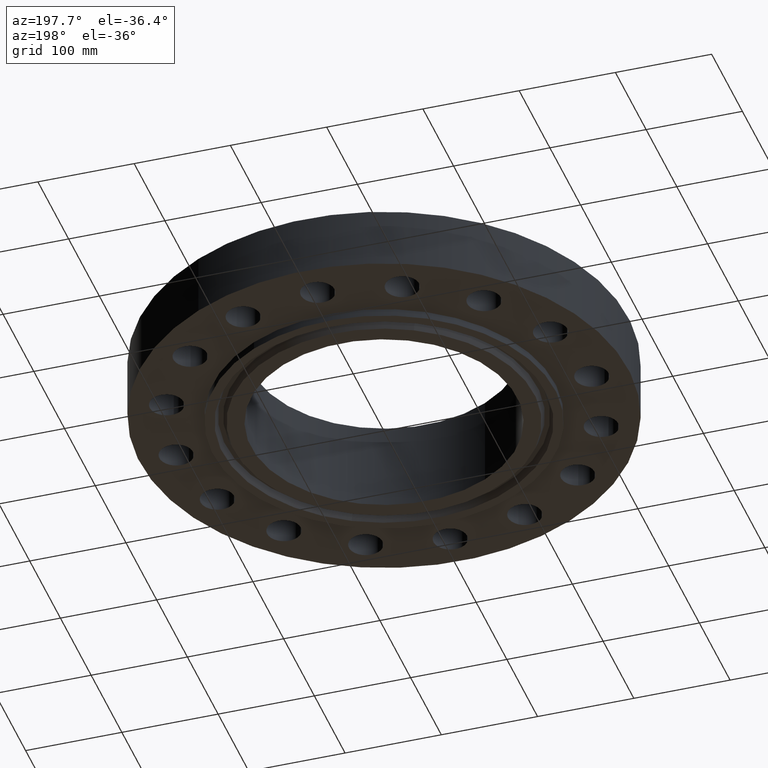
[diagram: clean part render]
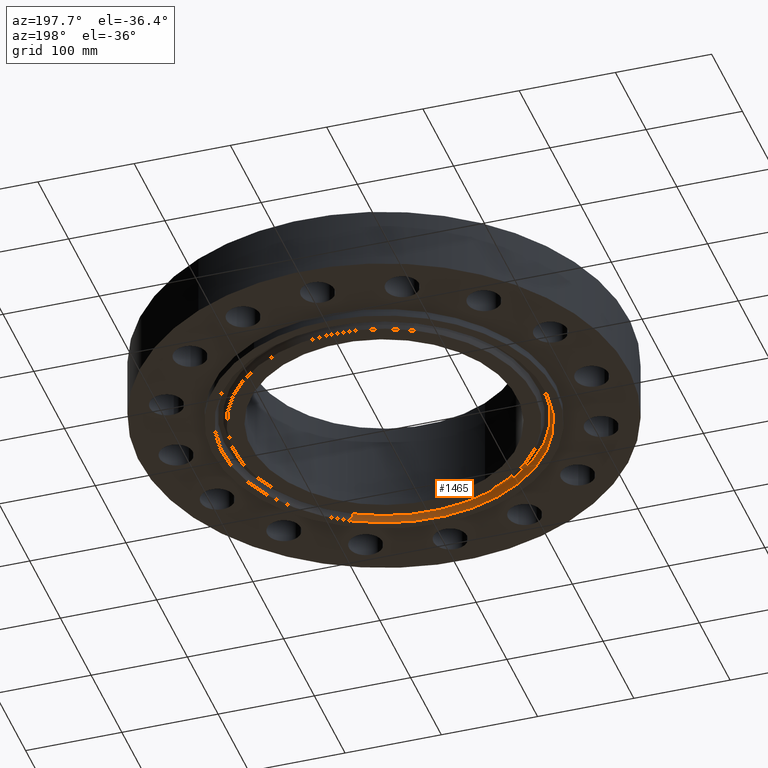
[diagram: same view with one face highlighted and labeled with its STEP entity id]
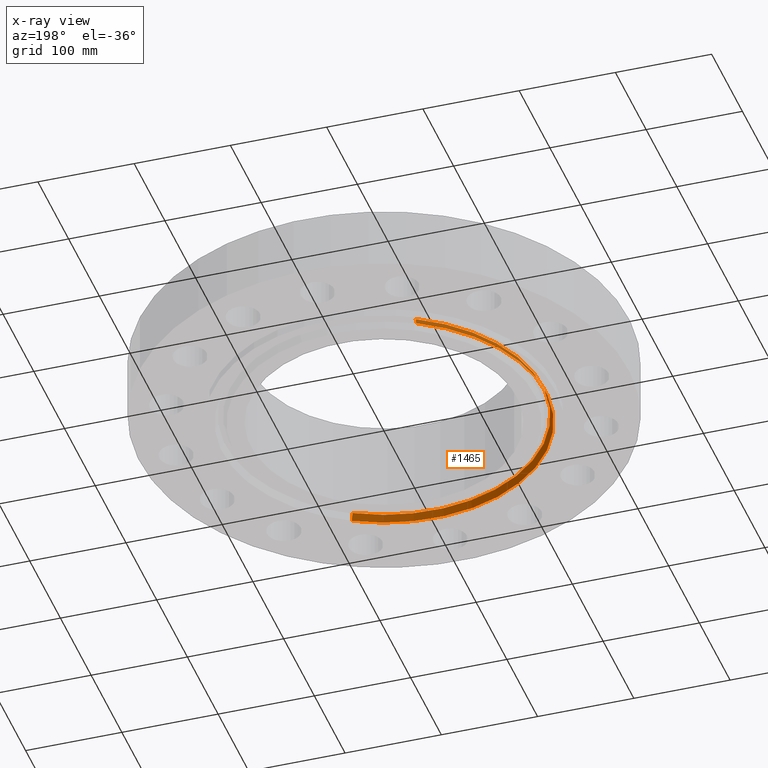
[diagram: x-ray of the same camera — body ghosted, the highlighted face saturated]
A machine part, auxiliary view. The second image highlights one B-rep face of the part: STEP entity #1465.
The next image is the same camera in x-ray: the body ghosted, the highlighted face saturated — about 0% of this face is hidden behind the body in this view.
In plain terms, the highlighted conical surface has half-angle 23 deg.
Its self-contained STEP definition (entity closure, byte-faithful):
#1364=AXIS2_PLACEMENT_3D('Circle Axis2P3D',#1362,#1363,$) ;
#1411=AXIS2_PLACEMENT_3D('Circle Axis2P3D',#1409,#1410,$) ;
#1447=AXIS2_PLACEMENT_3D('Cone Axis2P3D',#1444,#1445,#1446) ;
#1362=CARTESIAN_POINT('Axis2P3D Location',(-2.79741234551E-016,1.1189649382E-015,-0.312500000001)) ;
#1366=CARTESIAN_POINT('Vertex',(3.16870316922,-5.80027224502,-0.312500000001)) ;
#1368=CARTESIAN_POINT('Vertex',(-3.16870316922,5.80027224502,-0.312500000001)) ;
#1409=CARTESIAN_POINT('Axis2P3D Location',(0.,0.,-0.0190396522348)) ;
#1413=CARTESIAN_POINT('Vertex',(-3.10898279484,5.69095483297,-0.0190396522348)) ;
#1415=CARTESIAN_POINT('Vertex',(3.10898279484,-5.69095483297,-0.0190396522348)) ;
#1444=CARTESIAN_POINT('Axis2P3D Location',(0.,0.,-0.0190396522348)) ;
#1449=CARTESIAN_POINT('Line Origine',(-3.13884298203,5.74561353899,-0.165769826118)) ;
#1454=CARTESIAN_POINT('Line Origine',(3.13884298203,-5.74561353899,-0.165769826118)) ;
#1363=DIRECTION('Axis2P3D Direction',(0.,0.,-0.0393700787402)) ;
#1410=DIRECTION('Axis2P3D Direction',(0.,0.,0.0393700787402)) ;
#1445=DIRECTION('Axis2P3D Direction',(-0.,-0.,-0.0393700787402)) ;
#1446=DIRECTION('Axis2P3D XDirection',(-0.0188750212049,0.0345504945626,0.)) ;
#1450=DIRECTION('Vector Direction',(-0.00737505833565,0.0134999537303,-0.0362403485611)) ;
#1455=DIRECTION('Vector Direction',(0.00737505833565,-0.0134999537303,-0.0362403485611)) ;
#1451=VECTOR('Line Direction',#1450,0.0393700787402) ;
#1456=VECTOR('Line Direction',#1455,0.0393700787402) ;
#1460=ORIENTED_EDGE('',*,*,#1370,.T.) ;
#1461=ORIENTED_EDGE('',*,*,#1453,.T.) ;
#1462=ORIENTED_EDGE('',*,*,#1417,.T.) ;
#1463=ORIENTED_EDGE('',*,*,#1458,.F.) ;
#1465=ADVANCED_FACE('PartBody',(#1464),#1448,.F.) ;
#1365=CIRCLE('generated circle',#1364,6.60937500003) ;
#1412=CIRCLE('generated circle',#1411,6.48480847284) ;
#1448=CONICAL_SURFACE('Cone',#1447,6.48480847284,0.401425727959) ;
#1370=EDGE_CURVE('',#1367,#1369,#1365,.T.) ;
#1417=EDGE_CURVE('',#1414,#1416,#1412,.T.) ;
#1453=EDGE_CURVE('',#1369,#1414,#1452,.F.) ;
#1458=EDGE_CURVE('',#1367,#1416,#1457,.F.) ;
#1459=EDGE_LOOP('',(#1460,#1461,#1462,#1463)) ;
#1464=FACE_OUTER_BOUND('',#1459,.T.) ;
#1452=LINE('Line',#1449,#1451) ;
#1457=LINE('Line',#1454,#1456) ;
#1367=VERTEX_POINT('',#1366) ;
#1369=VERTEX_POINT('',#1368) ;
#1414=VERTEX_POINT('',#1413) ;
#1416=VERTEX_POINT('',#1415) ;